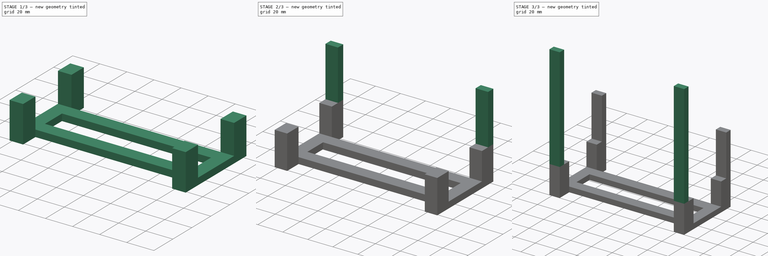
[diagram: build sequence overview — one tinted view per stage of 3, left to right]
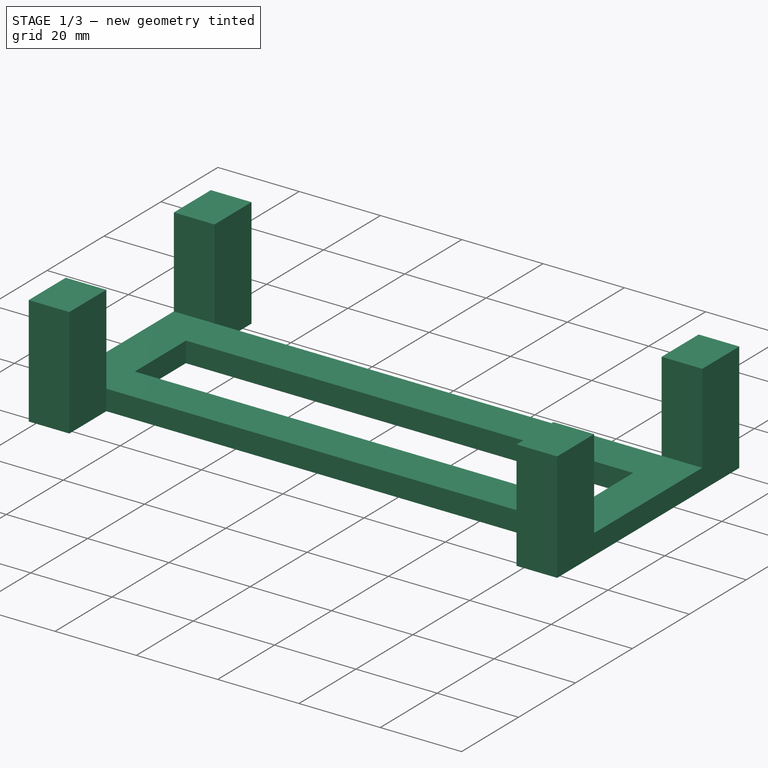
[diagram: stage 1 of 3 — iso view after this stage's code; geometry added in this stage tinted green]
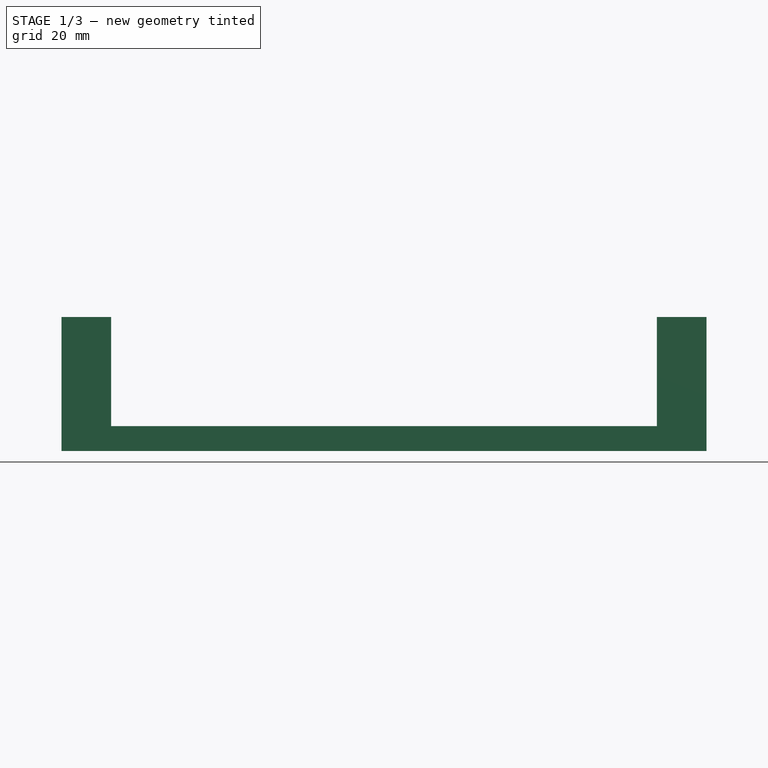
[diagram: stage 1 of 3 — front view after this stage's code; geometry added in this stage tinted green]
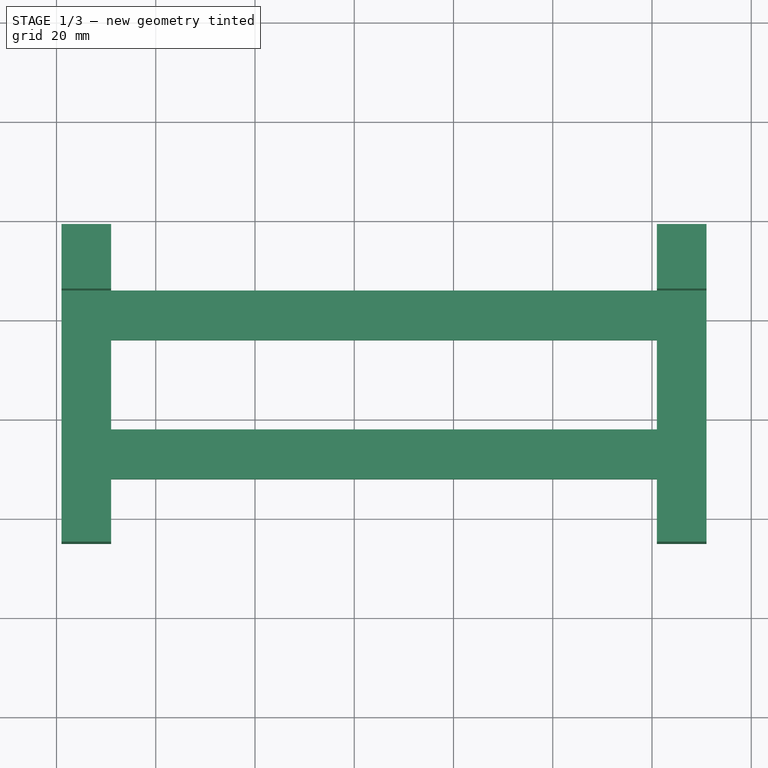
[diagram: stage 1 of 3 — top view after this stage's code; geometry added in this stage tinted green]
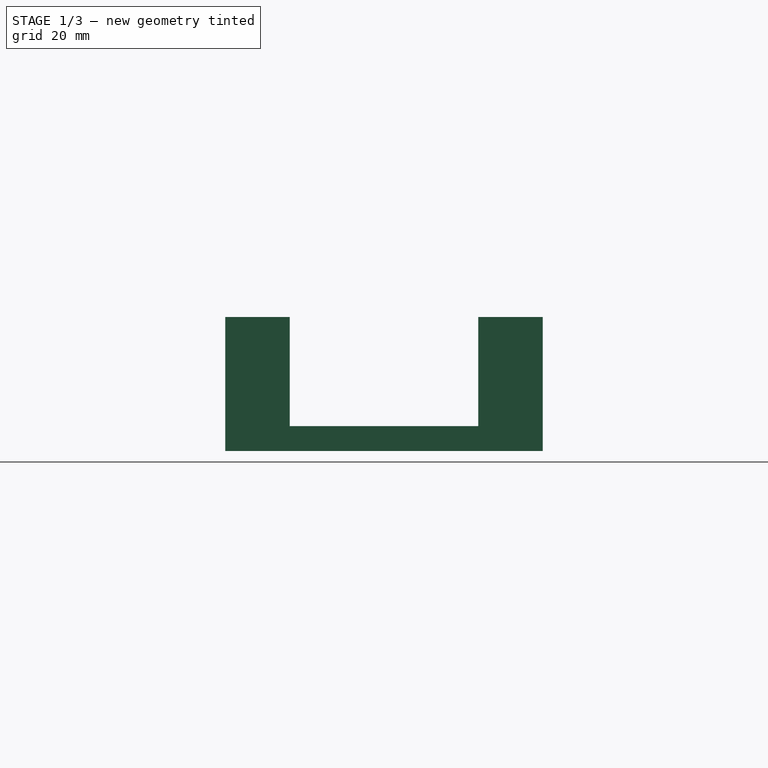
[diagram: stage 1 of 3 — right view after this stage's code; geometry added in this stage tinted green]
FCSTD DOCUMENT  (FreeCAD 0.15R4671 (Git))
Label: soporte_estante_filamento
License: CreativeCommons Attribution-ShareAlike
LicenseURL: http://creativecommons.org/licenses/by-sa/4.0/
objects: Sketcher::SketchObject×4, PartDesign::Pad×4, PartDesign::Mirrored×2
note: 14 computed .brp shape members not serialized (recipe doc carries the construction recipe); baked Part::Feature solids carry a one-line shape summary decoded from their .brp

FEATURE [Sketcher::SketchObject] Sketch  label="sketch_base"
  Placement = pos=(-14,-13,0) rot=(0,0,1;0rad)
  sketch-geometry (20):
    g0: LineSegment StartX=-55 StartY=19 StartZ=0 EndX=55 EndY=19 EndZ=0
    g1: LineSegment StartX=55 StartY=-19 StartZ=0 EndX=-55 EndY=-19 EndZ=0
    g2: LineSegment StartX=-55 StartY=9 StartZ=0 EndX=55 EndY=9 EndZ=0
    g3: LineSegment StartX=55 StartY=9 StartZ=0 EndX=55 EndY=-9 EndZ=0
    g4: LineSegment StartX=55 StartY=-9 StartZ=0 EndX=-55 EndY=-9 EndZ=0
    g5: LineSegment StartX=-55 StartY=-9 StartZ=0 EndX=-55 EndY=9 EndZ=0
    g6: LineSegment [constr] StartX=-55 StartY=9 StartZ=0 EndX=-65 EndY=9 EndZ=0
    g7: LineSegment [constr] StartX=55 StartY=9 StartZ=0 EndX=65 EndY=9 EndZ=0
    g8: LineSegment [constr] StartX=-55 StartY=9 StartZ=0 EndX=-55 EndY=19 EndZ=0
    g9: LineSegment [constr] StartX=-55 StartY=-9 StartZ=0 EndX=-55 EndY=-19 EndZ=0
    g10: LineSegment StartX=55 StartY=19 StartZ=0 EndX=55 EndY=32 EndZ=0
    g11: LineSegment StartX=55 StartY=32 StartZ=0 EndX=65 EndY=32 EndZ=0
    g12: LineSegment StartX=65 StartY=32 StartZ=0 EndX=65 EndY=-32 EndZ=0
    g13: LineSegment StartX=65 StartY=-32 StartZ=0 EndX=55 EndY=-32 EndZ=0
    g14: LineSegment StartX=55 StartY=-32 StartZ=0 EndX=55 EndY=-19 EndZ=0
    g15: LineSegment StartX=-55 StartY=19 StartZ=0 EndX=-55 EndY=32 EndZ=0
    g16: LineSegment StartX=-55 StartY=32 StartZ=0 EndX=-65 EndY=32 EndZ=0
    g17: LineSegment StartX=-65 StartY=32 StartZ=0 EndX=-65 EndY=-32 EndZ=0
    g18: LineSegment StartX=-65 StartY=-32 StartZ=0 EndX=-55 EndY=-32 EndZ=0
    g19: LineSegment StartX=-55 StartY=-32 StartZ=0 EndX=-55 EndY=-19 EndZ=0
  constraints (57):
    c: Horizontal(g0)
    c: Horizontal(g1)
    c: DistanceX(g1) = -110
    c: Coincident(g2,g3)
    c: Coincident(g3,g4)
    c: Coincident(g4,g5)
    c: Coincident(g5,g2)
    c: Horizontal(g2)
    c: Horizontal(g4)
    c: Vertical(g3)
    c: Vertical(g5)
    c: Coincident(g6,g2)
    c: Horizontal(g6)
    c: Coincident(g7,g2)
    c: Horizontal(g7)
    c: Coincident(g8,g2)
    c: PointOnObject(g8,g0)
    c: Vertical(g8)
    c: Coincident(g9,g4)
    c: PointOnObject(g9,g1)
    c: Vertical(g9)
    c: Equal(g9,g6)
    c: Equal(g6,g8)
    c: Equal(g8,g7)
    c: DistanceY(g9) = -10
    c: Symmetric(g0,g1,g-1)
    c: Symmetric(g0,g0,g-2)
    c: Coincident(g0,g10)
    c: Vertical(g10)
    c: Coincident(g10,g11)
    c: Horizontal(g11)
    c: Coincident(g11,g12)
    c: Vertical(g12)
    c: Coincident(g12,g13)
    c: Coincident(g13,g14)
    c: Vertical(g14)
    c: Horizontal(g13)
    c: Coincident(g0,g15)
    c: Vertical(g15)
    c: Coincident(g15,g16)
    c: Horizontal(g16)
    c: Coincident(g16,g17)
    c: Coincident(g17,g18)
    c: Horizontal(g18)
    c: Coincident(g18,g19)
    c: Coincident(g19,g1)
    c: Vertical(g19)
    c: Symmetric(g16,g11,g-2)
    c: Symmetric(g16,g17,g-1)
    c: Symmetric(g17,g12,g-2)
    c: DistanceX(g16) = -10
    c: DistanceY(g12) = -64
    c: PointOnObject(g6,g17)
    c: PointOnObject(g7,g12)
    c: Coincident(g14,g1)
    c: Symmetric(g13,g18,g-2)
    c: DistanceY(g3) = -18
FEATURE [PartDesign::Pad] Pad  label="base"
  Length = 5
  Length2 = 100
  Placement = pos=(-14,-13,0) rot=(0,0,1;0rad)
  Sketch = -> Sketch
  Type = 0
FEATURE [Sketcher::SketchObject] Sketch001  label="sketch_topes"
  ExternalGeometry = -> [Pad]
  Placement = pos=(-14,-13,5) rot=(0,0,1;0rad)
  Support = -> Pad [Face18]
  sketch-geometry (16):
    g0: LineSegment StartX=-65 StartY=32 StartZ=0 EndX=-55 EndY=32 EndZ=0
    g1: LineSegment StartX=-55 StartY=32 StartZ=0 EndX=-55 EndY=19 EndZ=0
    g2: LineSegment StartX=-55 StartY=19 StartZ=0 EndX=-65 EndY=19 EndZ=0
    g3: LineSegment StartX=-65 StartY=19 StartZ=0 EndX=-65 EndY=32 EndZ=0
    g4: LineSegment StartX=-65 StartY=-32 StartZ=0 EndX=-55 EndY=-32 EndZ=0
    g5: LineSegment StartX=-55 StartY=-32 StartZ=0 EndX=-55 EndY=-19 EndZ=0
    g6: LineSegment StartX=-55 StartY=-19 StartZ=0 EndX=-65 EndY=-19 EndZ=0
    g7: LineSegment StartX=-65 StartY=-19 StartZ=0 EndX=-65 EndY=-32 EndZ=0
    g8: LineSegment StartX=65 StartY=32 StartZ=0 EndX=55 EndY=32 EndZ=0
    g9: LineSegment StartX=55 StartY=32 StartZ=0 EndX=55 EndY=19 EndZ=0
    g10: LineSegment StartX=55 StartY=19 StartZ=0 EndX=65 EndY=19 EndZ=0
    g11: LineSegment StartX=65 StartY=19 StartZ=0 EndX=65 EndY=32 EndZ=0
    g12: LineSegment StartX=65 StartY=-32 StartZ=0 EndX=55 EndY=-32 EndZ=0
    g13: LineSegment StartX=55 StartY=-32 StartZ=0 EndX=55 EndY=-19 EndZ=0
    g14: LineSegment StartX=55 StartY=-19 StartZ=0 EndX=65 EndY=-19 EndZ=0
    g15: LineSegment StartX=65 StartY=-19 StartZ=0 EndX=65 EndY=-32 EndZ=0
  constraints (40):
    c: Coincident(g0,g1)
    c: Coincident(g1,g2)
    c: Coincident(g2,g3)
    c: Coincident(g3,g0)
    c: Horizontal(g0)
    c: Horizontal(g2)
    c: Vertical(g1)
    c: Vertical(g3)
    c: Coincident(g0,g-6)
    c: Coincident(g1,g-4)
    c: Coincident(g4,g5)
    c: Coincident(g5,g6)
    c: Coincident(g6,g7)
    c: Coincident(g7,g4)
    c: Horizontal(g4)
    c: Horizontal(g6)
    c: Vertical(g5)
    c: Vertical(g7)
    c: Coincident(g4,g-7)
    c: Coincident(g5,g-9)
    c: Coincident(g8,g9)
    c: Coincident(g9,g10)
    c: Coincident(g10,g11)
    c: Coincident(g11,g8)
    c: Horizontal(g8)
    c: Horizontal(g10)
    c: Vertical(g9)
    c: Vertical(g11)
    c: Coincident(g8,g-12)
    c: Coincident(g9,g-11)
    c: Coincident(g12,g13)
    c: Coincident(g13,g14)
    c: Coincident(g14,g15)
    c: Coincident(g15,g12)
    c: Horizontal(g12)
    c: Horizontal(g14)
    c: Vertical(g13)
    c: Vertical(g15)
    c: Coincident(g12,g-13)
    c: Coincident(g13,g-14)
FEATURE [PartDesign::Pad] Pad001  label="base_con_tope"
  Length = 22
  Length2 = 100
  Placement = pos=(-14,-13,0) rot=(0,0,1;0rad)
  Sketch = -> Sketch001
  Type = 0
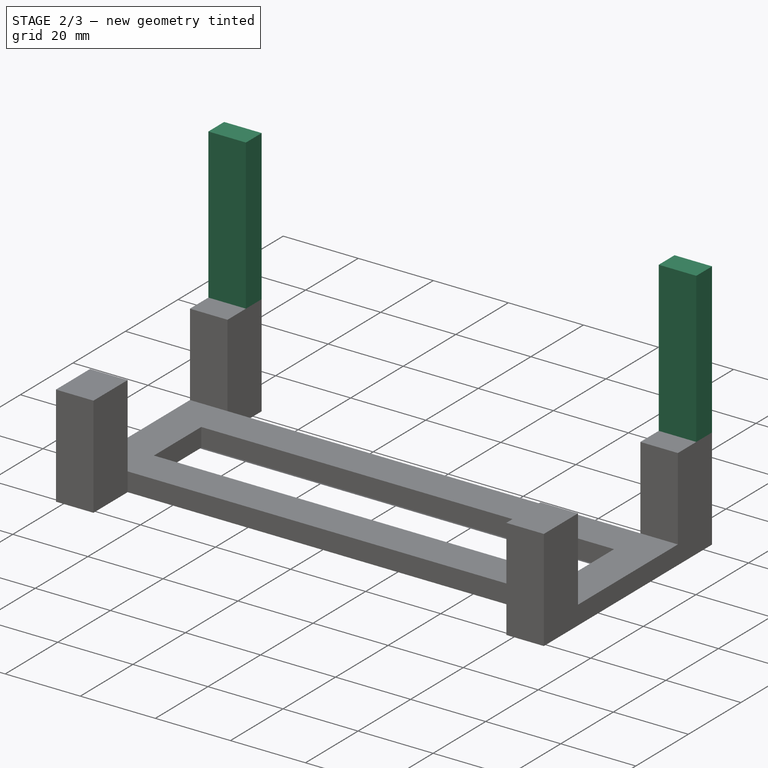
[diagram: stage 2 of 3 — iso view after this stage's code; geometry added in this stage tinted green]
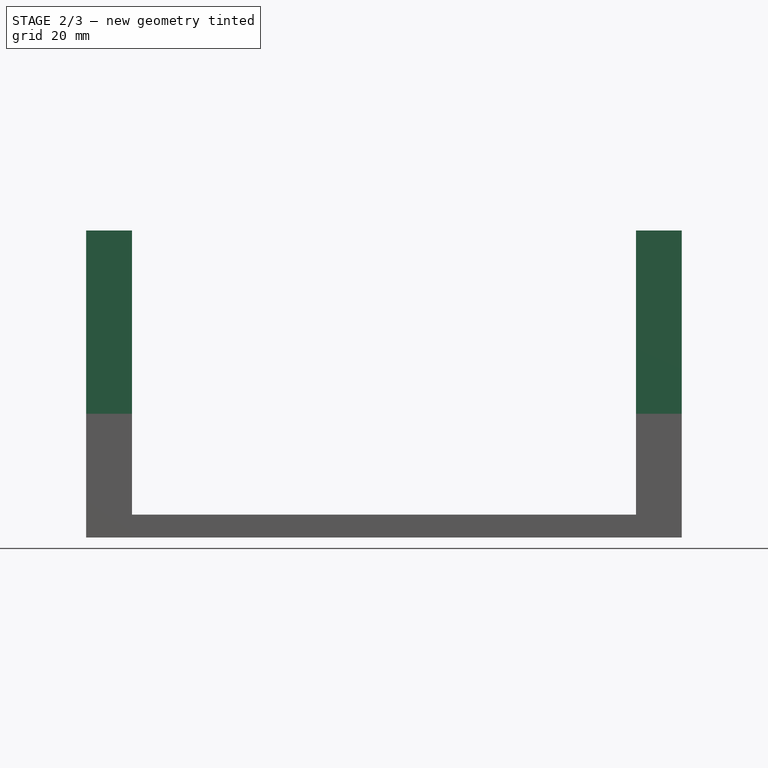
[diagram: stage 2 of 3 — front view after this stage's code; geometry added in this stage tinted green]
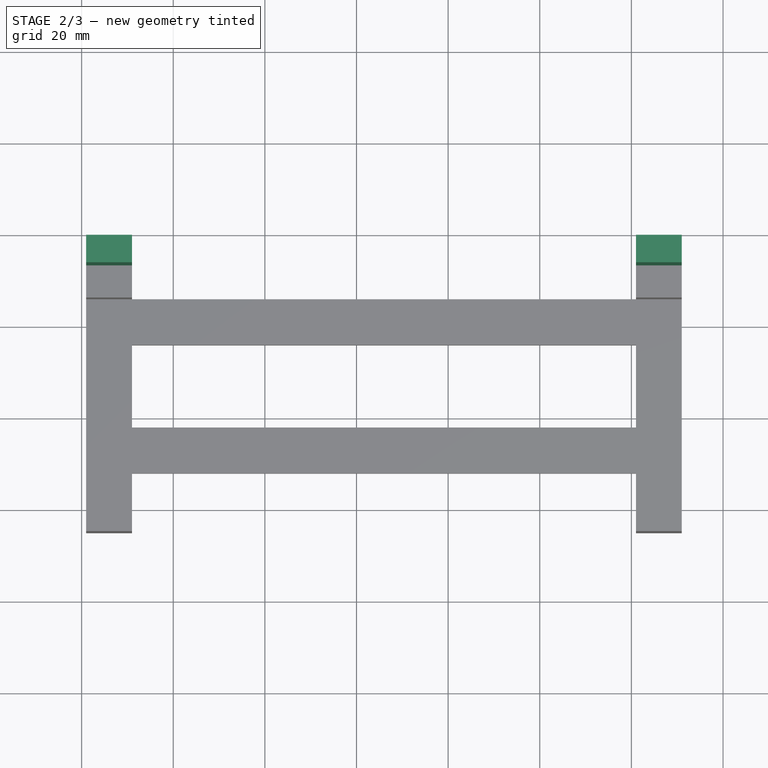
[diagram: stage 2 of 3 — top view after this stage's code; geometry added in this stage tinted green]
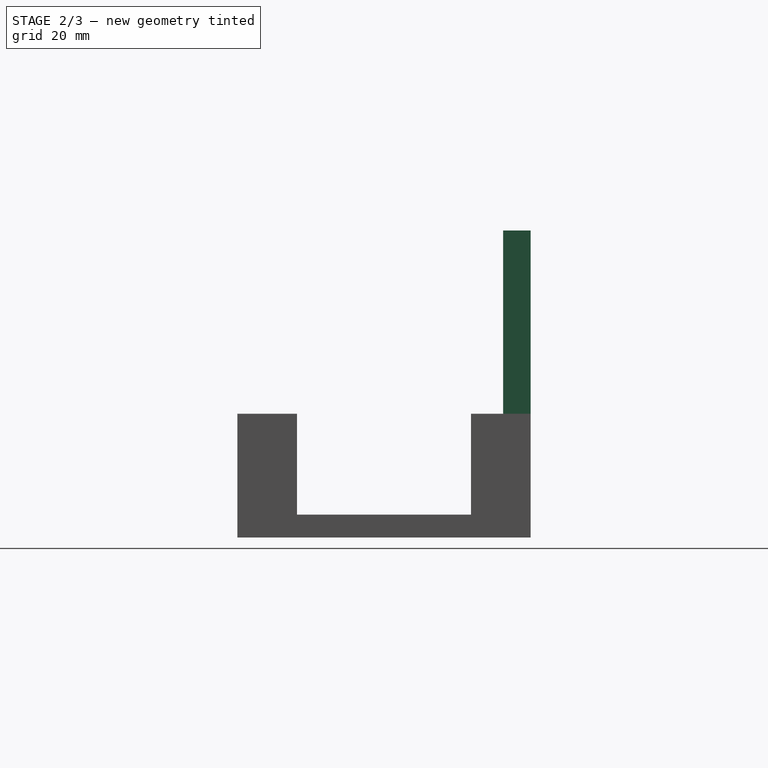
[diagram: stage 2 of 3 — right view after this stage's code; geometry added in this stage tinted green]
FEATURE [Sketcher::SketchObject] Sketch002
  ExternalGeometry = -> [Pad001]
  Placement = pos=(-14,-13,27) rot=(0,0,1;0rad)
  Support = -> Pad001 [Face16]
  sketch-geometry (4):
    g0: LineSegment StartX=-55 StartY=32 StartZ=0 EndX=-65 EndY=32 EndZ=0
    g1: LineSegment StartX=-65 StartY=32 StartZ=0 EndX=-65 EndY=26 EndZ=0
    g2: LineSegment StartX=-65 StartY=26 StartZ=0 EndX=-55 EndY=26 EndZ=0
    g3: LineSegment StartX=-55 StartY=26 StartZ=0 EndX=-55 EndY=32 EndZ=0
FEATURE [PartDesign::Pad] Pad002  label="base_con_tope_una_sujeccion_superior"
  Length = 40
  Length2 = 100
  Placement = pos=(-14,-13,0) rot=(0,0,1;0rad)
  Sketch = -> Sketch002
  Type = 0
FEATURE [PartDesign::Mirrored] Mirrored  label="base_con_tope_sujeccion_superior"
  MirrorPlane = -> Sketch002 [V_Axis]
  Originals = -> [Pad002]
  Placement = pos=(-14,-13,0) rot=(0,0,1;0rad)
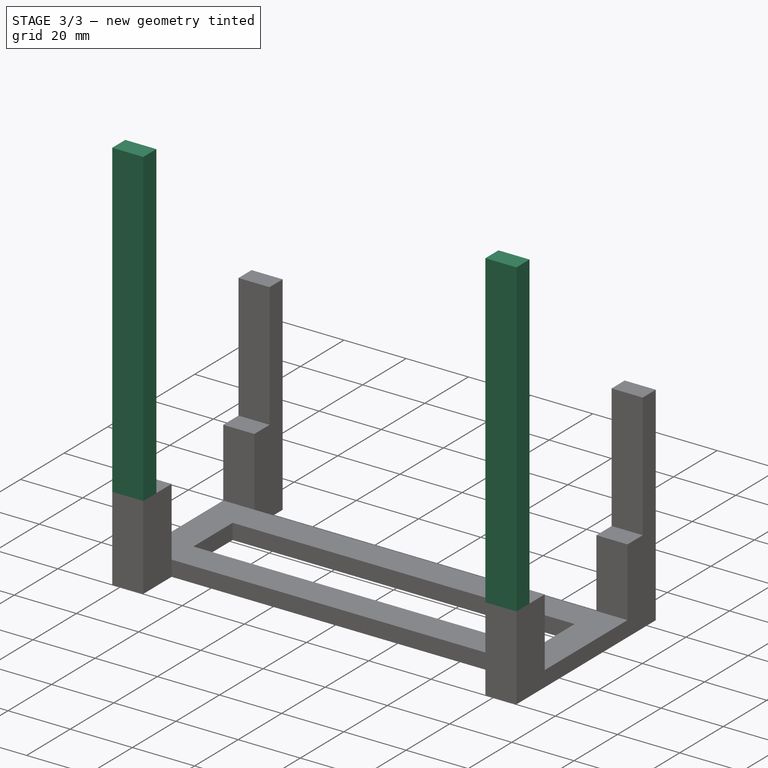
[diagram: stage 3 of 3 — iso view after this stage's code; geometry added in this stage tinted green]
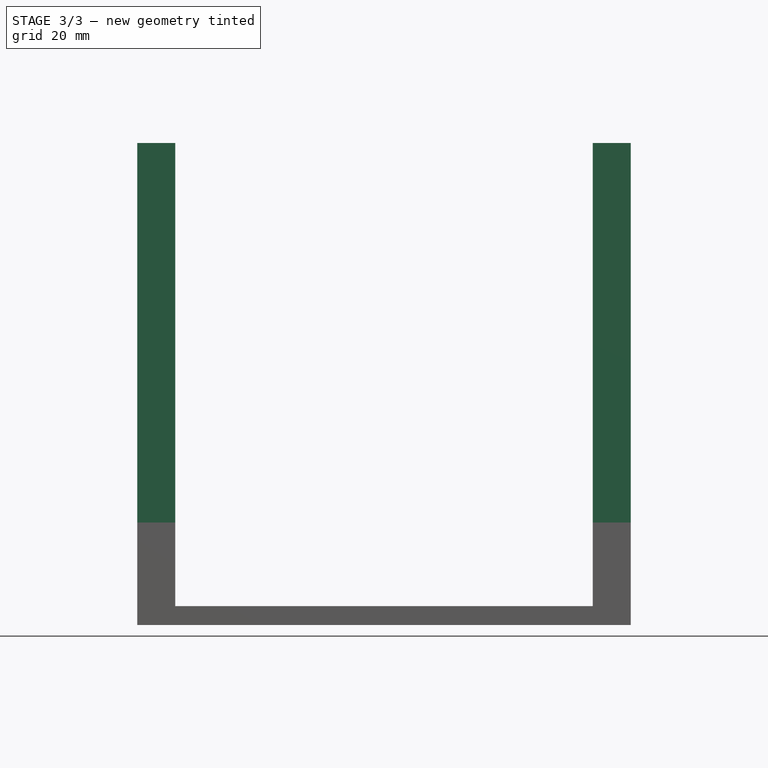
[diagram: stage 3 of 3 — front view after this stage's code; geometry added in this stage tinted green]
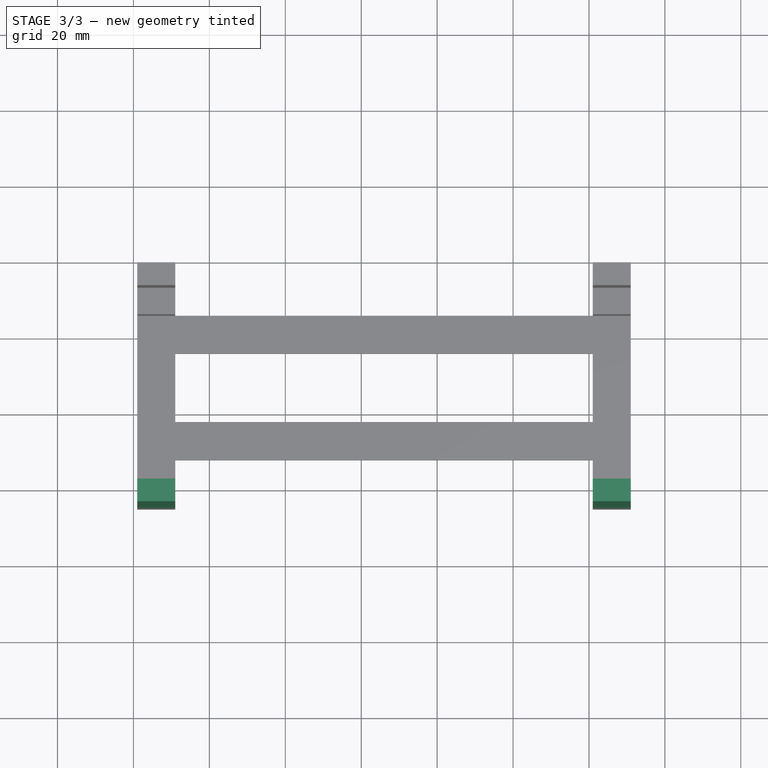
[diagram: stage 3 of 3 — top view after this stage's code; geometry added in this stage tinted green]
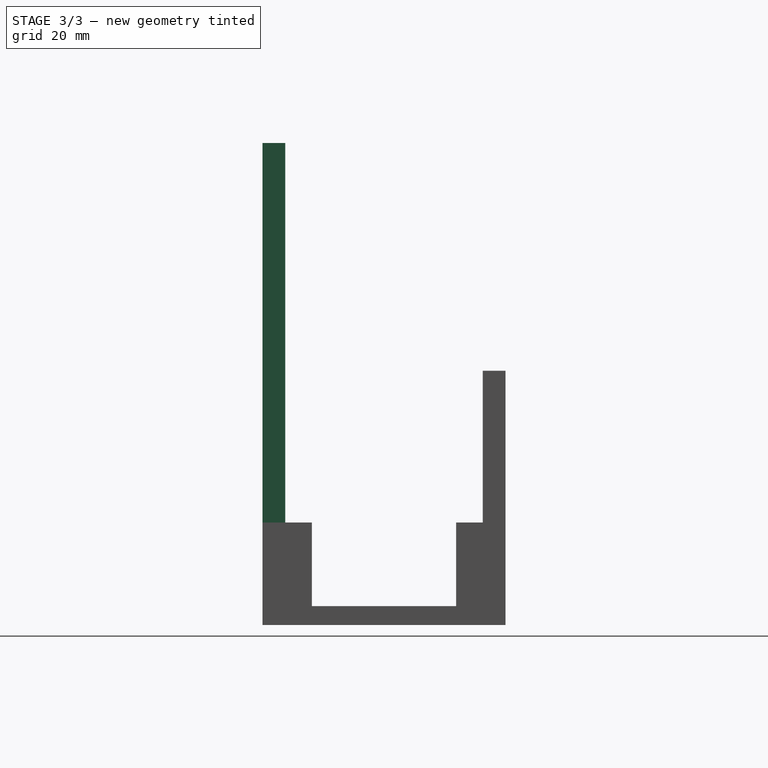
[diagram: stage 3 of 3 — right view after this stage's code; geometry added in this stage tinted green]
FEATURE [Sketcher::SketchObject] Sketch003
  ExternalGeometry = -> [Mirrored]
  Placement = pos=(-14,-13,27) rot=(0,0,1;0rad)
  Support = -> Mirrored [Face21]
  sketch-geometry (4):
    g0: LineSegment StartX=-55 StartY=-32 StartZ=0 EndX=-65 EndY=-32 EndZ=0
    g1: LineSegment StartX=-65 StartY=-32 StartZ=0 EndX=-65 EndY=-26 EndZ=0
    g2: LineSegment StartX=-65 StartY=-26 StartZ=0 EndX=-55 EndY=-26 EndZ=0
    g3: LineSegment StartX=-55 StartY=-26 StartZ=0 EndX=-55 EndY=-32 EndZ=0
  constraints (11):
    c: Coincident(g0,g1)
    c: Coincident(g1,g2)
    c: Coincident(g2,g3)
    c: Coincident(g3,g0)
    c: Horizontal(g0)
    c: Horizontal(g2)
    c: Vertical(g1)
    c: Vertical(g3)
    c: Coincident(g0,g-3)
    c: PointOnObject(g1,g-4)
    c: DistanceY(g3) = -6
FEATURE [PartDesign::Pad] Pad003  label="base_con_tope_sujeccion_superior_una_inferior"
  Length = 100
  Length2 = 100
  Placement = pos=(-14,-13,0) rot=(0,0,1;0rad)
  Sketch = -> Sketch003
  Type = 0
FEATURE [PartDesign::Mirrored] Mirrored001  label="base_con_tope_sujeccion_superior_inferior"
  MirrorPlane = -> Sketch003 [V_Axis]
  Originals = -> [Pad003]
  Placement = pos=(-14,-13,0) rot=(0,0,1;0rad)
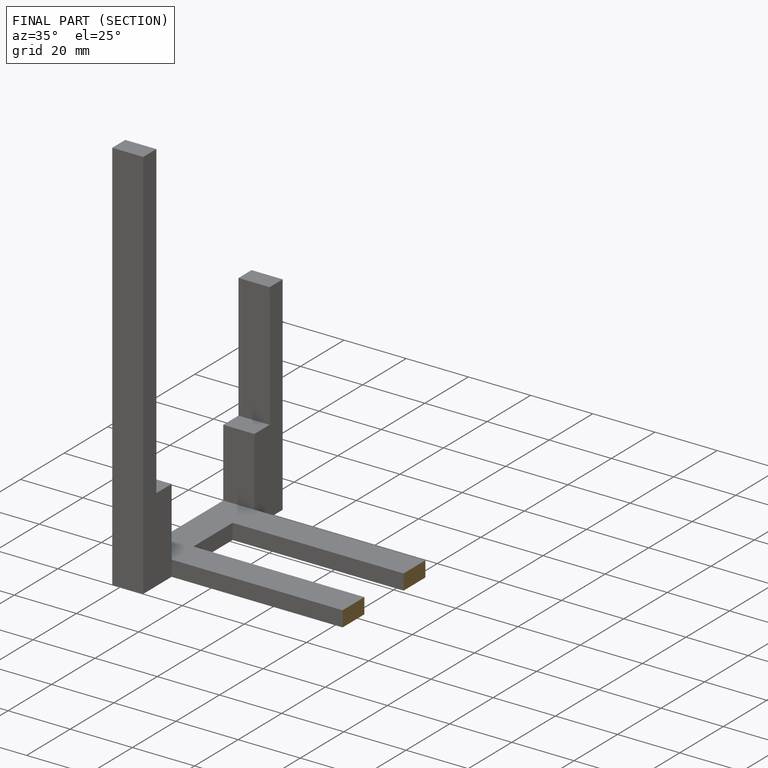
[diagram: finished part — half-section view (interior)]
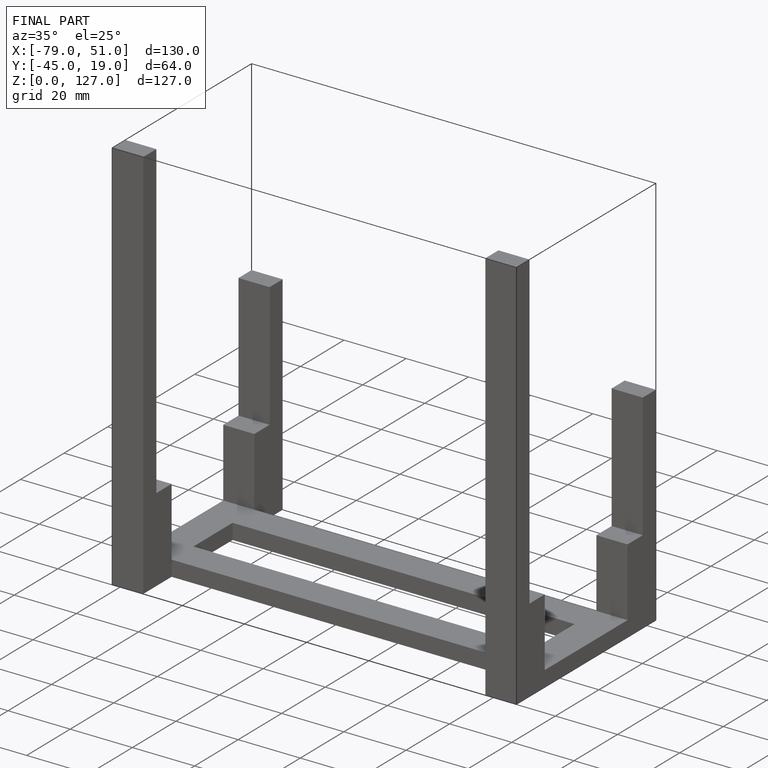
[diagram: finished part — iso view with bounding-box wireframe]
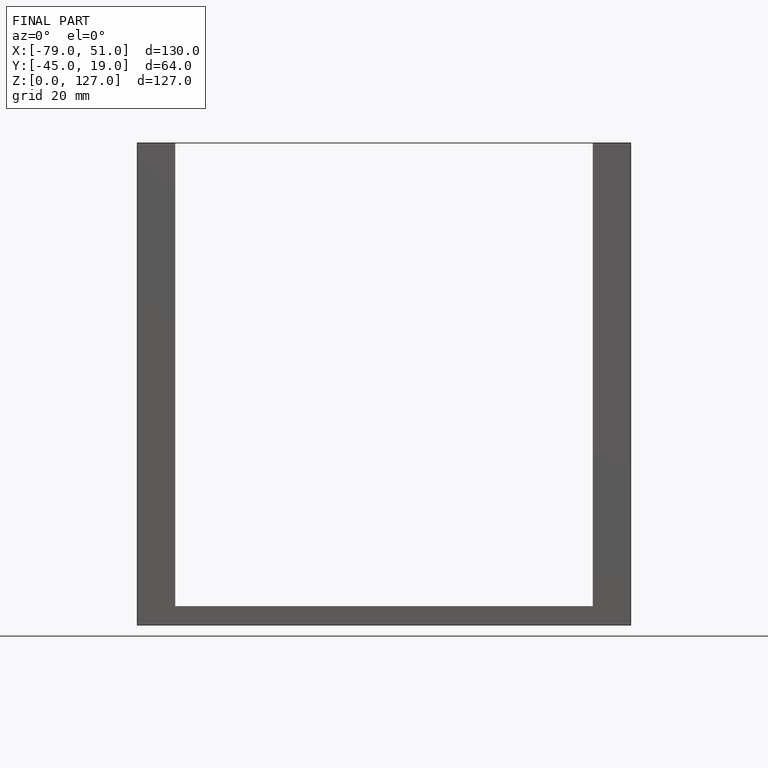
[diagram: finished part — front view with bounding-box wireframe]
